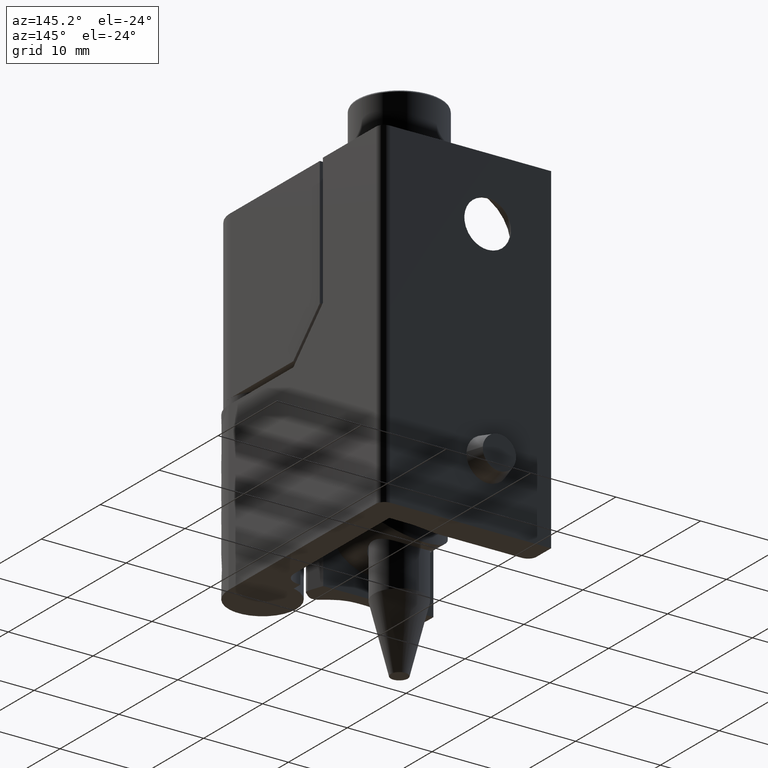
[diagram: clean part render]
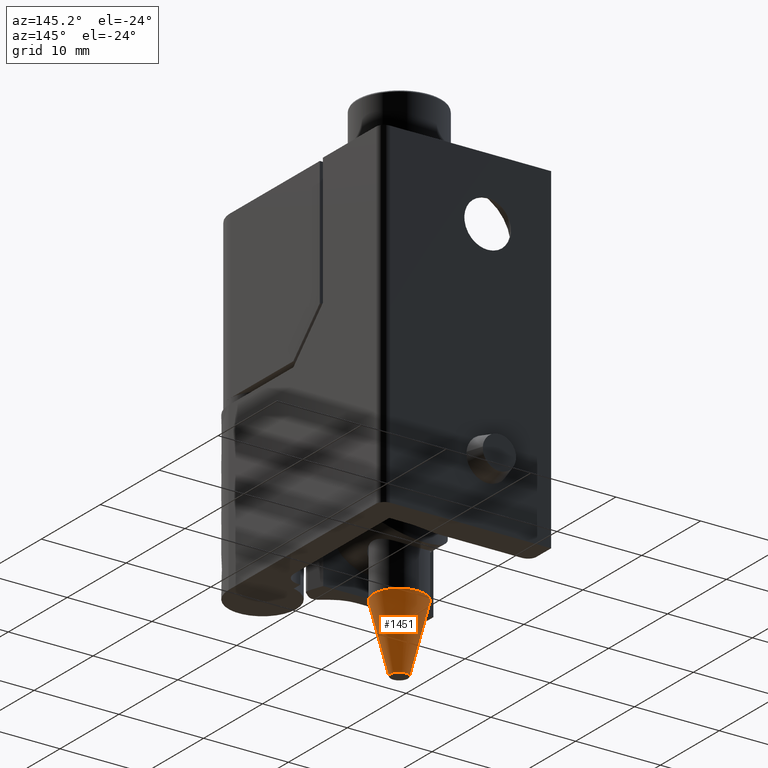
[diagram: same view with one face highlighted and labeled with its STEP entity id]
A machine part, auxiliary view. The second image highlights one B-rep face of the part: STEP entity #1451.
In plain terms, the highlighted face is a freeform B-spline surface patch.
Its self-contained STEP definition (entity closure, byte-faithful):
#1250=CARTESIAN_POINT('',(-8.421541256566641,10.003081906455151,-10.000000474970239));
#1251=VERTEX_POINT('',#1250);
#1252=CARTESIAN_POINT('',(-9.429864819941432,10.632096890436509,-10.000000474946020));
#1253=VERTEX_POINT('',#1252);
#1269=CARTESIAN_POINT('',(-8.264623008340564,8.009247145540137,-2.000000084512869));
#1270=VERTEX_POINT('',#1269);
#1271=CARTESIAN_POINT('',(-8.421541256566641,10.003081906455151,-10.000000474970239));
#1272=CARTESIAN_POINT('',(-8.264623008340564,8.009247145540137,-2.000000084512869));
#1273=QUASI_UNIFORM_CURVE('',1,(#1271,#1272),.UNSPECIFIED.,.F.,.U.);
#1274=EDGE_CURVE('',#1251,#1270,#1273,.T.);
#1276=CARTESIAN_POINT('',(-11.289593747862840,9.896292096616108,-2.000000094991224));
#1277=VERTEX_POINT('',#1276);
#1293=CARTESIAN_POINT('',(-9.429864819941432,10.632096890436509,-10.000000474946020));
#1294=CARTESIAN_POINT('',(-11.289593747862840,9.896292096616108,-2.000000094991224));
#1295=QUASI_UNIFORM_CURVE('',1,(#1293,#1294),.UNSPECIFIED.,.F.,.U.);
#1296=EDGE_CURVE('',#1253,#1277,#1295,.T.);
#1301=CARTESIAN_POINT('',(-8.425464211564284,10.052927775508429,-10.200000484473810));
#1302=CARTESIAN_POINT('',(-7.478392699534513,10.127463919990145,-10.200000484473811));
#1303=CARTESIAN_POINT('',(-7.552928844016229,11.074535432019919,-10.200000484473810));
#1304=CARTESIAN_POINT('',(-7.627464988497946,12.021606944049687,-10.200000484473811));
#1305=CARTESIAN_POINT('',(-8.574536500527715,11.947070799567969,-10.200000484473810));
#1306=CARTESIAN_POINT('',(-9.521608012557486,11.872534655086255,-10.200000484473811));
#1307=CARTESIAN_POINT('',(-9.447071868075771,10.925463143056490,-10.200000484473810));
#1308=CARTESIAN_POINT('',(-9.435874966102531,10.783193014173607,-10.200000484473811));
#1309=CARTESIAN_POINT('',(-9.383371596790493,10.650492010420695,-10.200000484473811));
#1310=CARTESIAN_POINT('',(-8.260602028835608,7.958155128505239,-1.795000085259414));
#1311=CARTESIAN_POINT('',(-5.218757869802646,8.197553455715632,-1.795000085259414));
#1312=CARTESIAN_POINT('',(-5.458156197013039,11.239397614748590,-1.795000085259414));
#1313=CARTESIAN_POINT('',(-5.697554524223430,14.281241773781561,-1.795000085259414));
#1314=CARTESIAN_POINT('',(-8.739398683256392,14.041843446571161,-1.795000085259414));
#1315=CARTESIAN_POINT('',(-11.781242842289350,13.802445119360771,-1.795000085259414));
#1316=CARTESIAN_POINT('',(-11.541844515078960,10.760600960327810,-1.795000085259414));
#1317=CARTESIAN_POINT('',(-11.505881833872797,10.303651770060510,-1.795000085259414));
#1318=CARTESIAN_POINT('',(-11.337249301648184,9.877437098796143,-1.795000085259414));
#1326=(BOUNDED_SURFACE()B_SPLINE_SURFACE(2,1,((#1301,#1310),(#1302,#1311),(#1303,#1312),(#1304,#1313),(#1305,#1314),(#1306,#1315),(#1307,#1316),(#1308,#1317),(#1309,#1318)),.UNSPECIFIED.,.F.,.F.,.U.)B_SPLINE_SURFACE_WITH_KNOTS((3,2,2,2,3),(2,2),(0.0,5.055476768885738,10.110953537771479,15.166430306657210,16.177525660434359),(0.0,8.663676107330019),.UNSPECIFIED.)GEOMETRIC_REPRESENTATION_ITEM()RATIONAL_B_SPLINE_SURFACE(((1.0,1.0),(0.707106781186548,0.707106781186548),(1.0,1.0),(0.707106781186548,0.707106781186548),(1.0,1.0),(0.707106781186548,0.707106781186548),(1.0,1.0),(0.941421356237310,0.941421356237310),(0.906274169979695,0.906274169979695)))REPRESENTATION_ITEM('')SURFACE());
#1327=CARTESIAN_POINT('',(-9.500000403543266,10.999999287538200,-10.000000474974360));
#1328=VERTEX_POINT('',#1327);
#1329=CARTESIAN_POINT('',(-9.429864819941434,10.632096890436507,-10.000000474946020));
#1330=CARTESIAN_POINT('',(-9.500000403543266,10.809362891798408,-10.000000474974359));
#1331=CARTESIAN_POINT('',(-9.500000403543266,10.999999287538200,-10.000000474974360));
#1339=(BOUNDED_CURVE()B_SPLINE_CURVE(2,(#1329,#1330,#1331),.UNSPECIFIED.,.F.,.U.)B_SPLINE_CURVE_WITH_KNOTS((3,3),(0.937532549894346,1.0),.UNSPECIFIED.)CURVE()GEOMETRIC_REPRESENTATION_ITEM()RATIONAL_B_SPLINE_CURVE((0.890203187448474,0.926814829869945,1.0))REPRESENTATION_ITEM(''));
#1340=EDGE_CURVE('',#1253,#1328,#1339,.T.);
#1341=ORIENTED_EDGE('',*,*,#1340,.F.);
#1342=ORIENTED_EDGE('',*,*,#1296,.T.);
#1343=CARTESIAN_POINT('',(-11.500000498538270,10.999999287538200,-2.000000094996350));
#1344=VERTEX_POINT('',#1343);
#1345=CARTESIAN_POINT('',(-11.289593747862842,9.896292096616108,-2.000000094991223));
#1346=CARTESIAN_POINT('',(-11.500000498538267,10.428090100737565,-2.000000094996350));
#1347=CARTESIAN_POINT('',(-11.500000498538270,10.999999287538200,-2.000000094996350));
#1355=(BOUNDED_CURVE()B_SPLINE_CURVE(2,(#1345,#1346,#1347),.UNSPECIFIED.,.F.,.U.)B_SPLINE_CURVE_WITH_KNOTS((3,3),(0.937532549936746,1.0),.UNSPECIFIED.)CURVE()GEOMETRIC_REPRESENTATION_ITEM()RATIONAL_B_SPLINE_CURVE((0.890203187498175,0.926814829919620,1.0))REPRESENTATION_ITEM(''));
#1356=EDGE_CURVE('',#1277,#1344,#1355,.T.);
#1357=ORIENTED_EDGE('',*,*,#1356,.T.);
#1358=CARTESIAN_POINT('',(-8.725221912687475,13.991533359779000,-2.000000094996353));
#1359=VERTEX_POINT('',#1358);
#1360=CARTESIAN_POINT('',(-11.500000498538270,10.999999287538200,-2.000000094996350));
#1361=CARTESIAN_POINT('',(-11.500000498538272,13.782630523471541,-2.000000094996350));
#1362=CARTESIAN_POINT('',(-8.725221912687475,13.991533359778998,-2.000000094996354));
#1370=(BOUNDED_CURVE()B_SPLINE_CURVE(2,(#1360,#1361,#1362),.UNSPECIFIED.,.F.,.U.)B_SPLINE_CURVE_WITH_KNOTS((3,3),(0.0,0.236913697995588),.UNSPECIFIED.)CURVE()GEOMETRIC_REPRESENTATION_ITEM()RATIONAL_B_SPLINE_CURVE((1.0,0.722438337652296,0.970941954093371))REPRESENTATION_ITEM(''));
#1371=EDGE_CURVE('',#1344,#1359,#1370,.T.);
#1372=ORIENTED_EDGE('',*,*,#1371,.T.);
#1373=CARTESIAN_POINT('',(-6.620348261839865,13.338141468779570,-2.000000094996353));
#1374=VERTEX_POINT('',#1373);
#1375=CARTESIAN_POINT('',(-8.725221912687475,13.991533359779007,-2.000000094996353));
#1376=CARTESIAN_POINT('',(-8.612770254034501,13.999999430030465,-2.000000094996350));
#1377=CARTESIAN_POINT('',(-8.500000356046000,13.999999430030471,-2.000000094996350));
#1378=CARTESIAN_POINT('',(-7.443648500198129,13.999999430030465,-2.000000094996350));
#1379=CARTESIAN_POINT('',(-6.620348261839865,13.338141468779568,-2.000000094996353));
#1387=(BOUNDED_CURVE()B_SPLINE_CURVE(2,(#1375,#1376,#1377,#1378,#1379),.UNSPECIFIED.,.F.,.U.)B_SPLINE_CURVE_WITH_KNOTS((3,2,3),(0.236913697995588,0.250000000000000,0.358646039404815),.UNSPECIFIED.)CURVE()GEOMETRIC_REPRESENTATION_ITEM()RATIONAL_B_SPLINE_CURVE((0.970941954093371,0.984668443534252,1.0,0.872713247229562,0.856060106916788))REPRESENTATION_ITEM(''));
#1388=EDGE_CURVE('',#1359,#1374,#1387,.T.);
#1389=ORIENTED_EDGE('',*,*,#1388,.T.);
#1390=CARTESIAN_POINT('',(-5.500000213553731,10.999999287538200,-2.000000094996350));
#1391=VERTEX_POINT('',#1390);
#1392=CARTESIAN_POINT('',(-6.620348261839865,13.338141468779572,-2.000000094996354));
#1393=CARTESIAN_POINT('',(-5.500000213553731,12.437484283730354,-2.000000094996350));
#1394=CARTESIAN_POINT('',(-5.500000213553731,10.999999287538200,-2.000000094996350));
#1402=(BOUNDED_CURVE()B_SPLINE_CURVE(2,(#1392,#1393,#1394),.UNSPECIFIED.,.F.,.U.)B_SPLINE_CURVE_WITH_KNOTS((3,3),(0.358646039404815,0.500000000000000),.UNSPECIFIED.)CURVE()GEOMETRIC_REPRESENTATION_ITEM()RATIONAL_B_SPLINE_CURVE((0.856060106916788,0.834393533956986,1.0))REPRESENTATION_ITEM(''));
#1403=EDGE_CURVE('',#1374,#1391,#1402,.T.);
#1404=ORIENTED_EDGE('',*,*,#1403,.T.);
#1405=CARTESIAN_POINT('',(-5.500000213553731,10.999999287538200,-2.000000094996350));
#1406=CARTESIAN_POINT('',(-5.500000213553731,8.226827772250278,-2.000000094996350));
#1407=CARTESIAN_POINT('',(-8.264623008340564,8.009247145540137,-2.000000084512869));
#1415=(BOUNDED_CURVE()B_SPLINE_CURVE(2,(#1405,#1406,#1407),.UNSPECIFIED.,.F.,.U.)B_SPLINE_CURVE_WITH_KNOTS((3,3),(0.500000000000000,0.736331294999943),.UNSPECIFIED.)CURVE()GEOMETRIC_REPRESENTATION_ITEM()RATIONAL_B_SPLINE_CURVE((1.0,0.723120665204461,0.969723344416542))REPRESENTATION_ITEM(''));
#1416=EDGE_CURVE('',#1391,#1270,#1415,.T.);
#1417=ORIENTED_EDGE('',*,*,#1416,.T.);
#1418=ORIENTED_EDGE('',*,*,#1274,.F.);
#1419=CARTESIAN_POINT('',(-7.500000308548735,10.999999287538200,-10.000000474974360));
#1420=VERTEX_POINT('',#1419);
#1421=CARTESIAN_POINT('',(-7.500000308548735,10.999999287538200,-10.000000474974360));
#1422=CARTESIAN_POINT('',(-7.500000308548738,10.075608752020180,-10.000000474974359));
#1423=CARTESIAN_POINT('',(-8.421541256566641,10.003081906455149,-10.000000474970243));
#1431=(BOUNDED_CURVE()B_SPLINE_CURVE(2,(#1421,#1422,#1423),.UNSPECIFIED.,.F.,.U.)B_SPLINE_CURVE_WITH_KNOTS((3,3),(0.500000000000000,0.736331300624224),.UNSPECIFIED.)CURVE()GEOMETRIC_REPRESENTATION_ITEM()RATIONAL_B_SPLINE_CURVE((1.0,0.723120658615205,0.969723356153987))REPRESENTATION_ITEM(''));
#1432=EDGE_CURVE('',#1420,#1251,#1431,.T.);
#1433=ORIENTED_EDGE('',*,*,#1432,.F.);
#1434=CARTESIAN_POINT('',(-9.500000403543266,10.999999287538200,-10.000000474974360));
#1435=CARTESIAN_POINT('',(-9.500000403543266,11.999999335035465,-10.000000474974359));
#1436=CARTESIAN_POINT('',(-8.500000356046000,11.999999335035470,-10.000000474974360));
#1437=CARTESIAN_POINT('',(-7.500000308548735,11.999999335035465,-10.000000474974359));
#1438=CARTESIAN_POINT('',(-7.500000308548735,10.999999287538200,-10.000000474974360));
#1446=(BOUNDED_CURVE()B_SPLINE_CURVE(2,(#1434,#1435,#1436,#1437,#1438),.UNSPECIFIED.,.F.,.U.)B_SPLINE_CURVE_WITH_KNOTS((3,2,3),(0.0,0.250000000000000,0.500000000000000),.UNSPECIFIED.)CURVE()GEOMETRIC_REPRESENTATION_ITEM()RATIONAL_B_SPLINE_CURVE((1.0,0.707106781186548,1.0,0.707106781186548,1.0))REPRESENTATION_ITEM(''));
#1447=EDGE_CURVE('',#1328,#1420,#1446,.T.);
#1448=ORIENTED_EDGE('',*,*,#1447,.F.);
#1449=EDGE_LOOP('',(#1341,#1342,#1357,#1372,#1389,#1404,#1417,#1418,#1433,#1448));
#1450=FACE_OUTER_BOUND('',#1449,.T.);
#1451=ADVANCED_FACE('',(#1450),#1326,.T.);